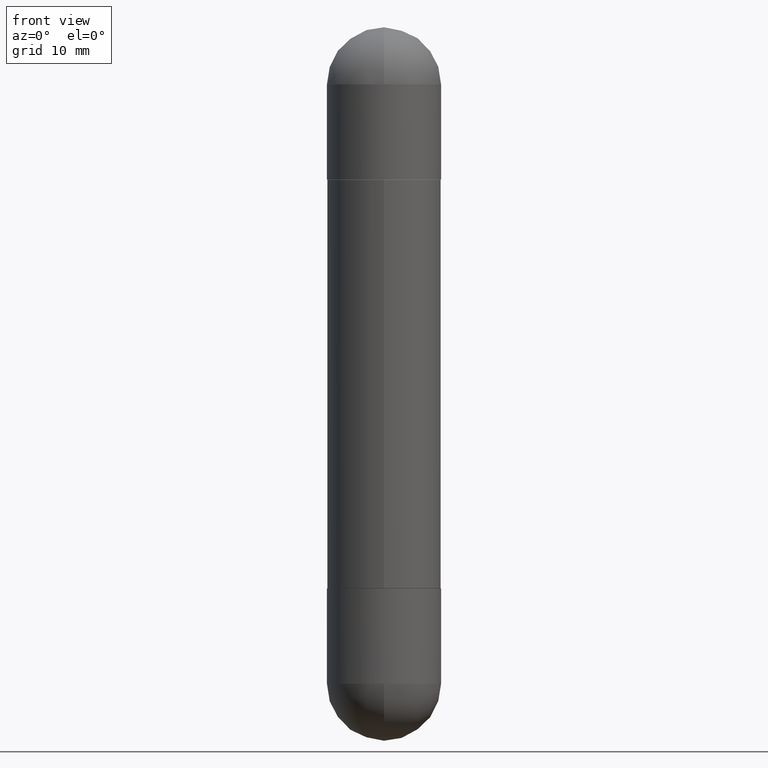
[diagram: clean part render]
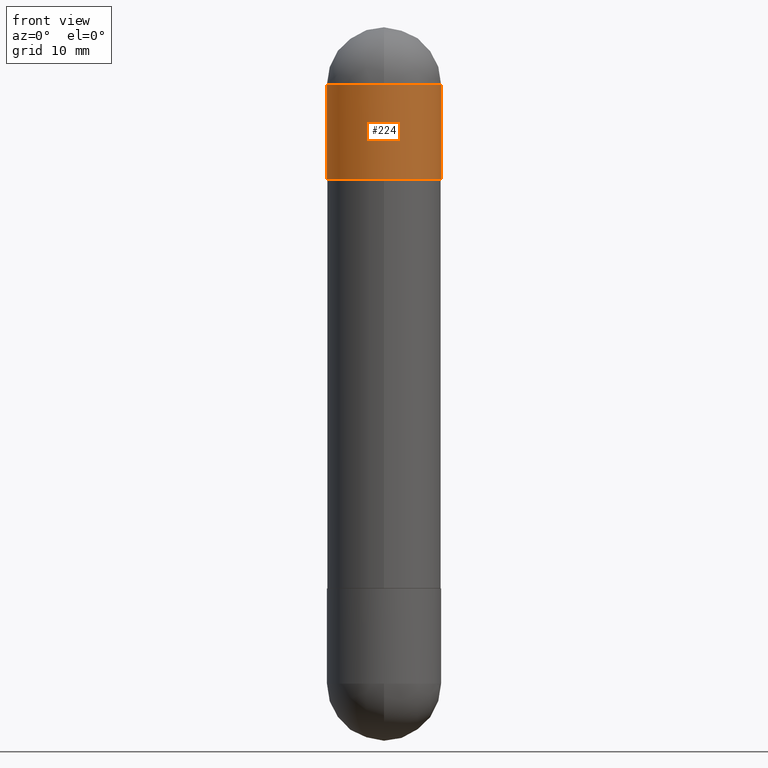
[diagram: same view with one face highlighted and labeled with its STEP entity id]
A machine part, front view. The second image highlights one B-rep face of the part: STEP entity #224.
In plain terms, the highlighted cylindrical surface (partial cylindrical patch) has radius 5.9995 mm, axis along (-0, 0, -1).
Its self-contained STEP definition (entity closure, byte-faithful):
#16 = VERTEX_POINT ( 'NONE', #47 ) ;
#17 = VERTEX_POINT ( 'NONE', #536 ) ;
#21 = EDGE_CURVE ( 'NONE', #17, #225, #312, .T. ) ;
#47 = CARTESIAN_POINT ( 'NONE',  ( -0.2361999999999999933, -7.177210476476377283E-15, -0.6299000000000000155 ) ) ;
#55 = DIRECTION ( 'NONE',  ( 2.445468806185136597E-29, -3.491481338843145583E-15, 1.000000000000000000 ) ) ;
#63 = CARTESIAN_POINT ( 'NONE',  ( 5.680579489887452821E-29, -8.110362001998742346E-15, -0.6299000000000000155 ) ) ;
#79 = VERTEX_POINT ( 'NONE', #242 ) ;
#83 = VERTEX_POINT ( 'NONE', #677 ) ;
#117 = AXIS2_PLACEMENT_3D ( 'NONE', #298, #161, #362 ) ;
#127 = CARTESIAN_POINT ( 'NONE',  ( -0.2361999999999999933, 1.620449627073635670E-15, -2.952799999999999869 ) ) ;
#128 = CIRCLE ( 'NONE', #774, 0.2361999999999999933 ) ;
#161 = DIRECTION ( 'NONE',  ( 2.445468806185136597E-29, -3.491481338843145583E-15, 1.000000000000000000 ) ) ;
#214 = ORIENTED_EDGE ( 'NONE', *, *, #813, .F. ) ;
#224 = ADVANCED_FACE ( 'NONE', ( #251 ), #257, .T. ) ;
#225 = VERTEX_POINT ( 'NONE', #752 ) ;
#230 = CARTESIAN_POINT ( 'NONE',  ( 6.643360558882540179E-29, -9.484958205101285532E-15, -0.2362000000000006039 ) ) ;
#242 = CARTESIAN_POINT ( 'NONE',  ( -0.2361999999999999933, -7.177210476476378861E-15, -0.2362000000000006039 ) ) ;
#251 = FACE_OUTER_BOUND ( 'NONE', #469, .T. ) ;
#257 = CYLINDRICAL_SURFACE ( 'NONE', #285, 0.2361999999999999933 ) ;
#269 = CARTESIAN_POINT ( 'NONE',  ( 0.2361999999999999933, -1.649375784469496131E-15, -2.952799999999999869 ) ) ;
#277 = ORIENTED_EDGE ( 'NONE', *, *, #750, .T. ) ;
#285 = AXIS2_PLACEMENT_3D ( 'NONE', #501, #311, #495 ) ;
#298 = CARTESIAN_POINT ( 'NONE',  ( 6.643360558882540179E-29, -9.484958205101285532E-15, -0.2362000000000006039 ) ) ;
#311 = DIRECTION ( 'NONE',  ( -2.445468806185136597E-29, 3.491481338843145583E-15, -1.000000000000000000 ) ) ;
#312 = CIRCLE ( 'NONE', #771, 0.2361999999999999933 ) ;
#362 = DIRECTION ( 'NONE',  ( 1.000000000000000000, -6.982962677686265133E-15, 0.000000000000000000 ) ) ;
#371 = LINE ( 'NONE', #127, #480 ) ;
#380 = DIRECTION ( 'NONE',  ( 2.445468806185136597E-29, -3.491481338843145583E-15, 1.000000000000000000 ) ) ;
#427 = DIRECTION ( 'NONE',  ( 1.000000000000000000, -6.982962677686265133E-15, 0.000000000000000000 ) ) ;
#448 = DIRECTION ( 'NONE',  ( -2.445468806185136877E-29, 3.491481338843145188E-15, -1.000000000000000000 ) ) ;
#469 = EDGE_LOOP ( 'NONE', ( #733, #643, #277, #214, #706 ) ) ;
#480 = VECTOR ( 'NONE', #448, 39.37007874015748143 ) ;
#495 = DIRECTION ( 'NONE',  ( 1.000000000000000000, -6.982962677686266711E-15, 0.000000000000000000 ) ) ;
#501 = CARTESIAN_POINT ( 'NONE',  ( 0.000000000000000000, 0.000000000000000000, -2.952799999999999869 ) ) ;
#536 = CARTESIAN_POINT ( 'NONE',  ( -1.620449627073571772E-15, -0.2362000000000098743, -0.2362000000000014366 ) ) ;
#549 = VECTOR ( 'NONE', #584, 39.37007874015748143 ) ;
#557 = EDGE_CURVE ( 'NONE', #79, #17, #760, .T. ) ;
#584 = DIRECTION ( 'NONE',  ( -2.445468806185136877E-29, 3.491481338843145188E-15, -1.000000000000000000 ) ) ;
#643 = ORIENTED_EDGE ( 'NONE', *, *, #687, .T. ) ;
#649 = LINE ( 'NONE', #269, #549 ) ;
#677 = CARTESIAN_POINT ( 'NONE',  ( 0.2361999999999999933, -9.759737786468237294E-15, -0.6299000000000000155 ) ) ;
#687 = EDGE_CURVE ( 'NONE', #79, #16, #371, .T. ) ;
#706 = ORIENTED_EDGE ( 'NONE', *, *, #21, .F. ) ;
#733 = ORIENTED_EDGE ( 'NONE', *, *, #557, .F. ) ;
#750 = EDGE_CURVE ( 'NONE', #16, #83, #128, .T. ) ;
#752 = CARTESIAN_POINT ( 'NONE',  ( 0.2361999999999999933, -1.044703588801951204E-14, -0.2362000000000006039 ) ) ;
#760 = CIRCLE ( 'NONE', #117, 0.2361999999999999933 ) ;
#764 = DIRECTION ( 'NONE',  ( 1.000000000000000000, -6.982962677686265133E-15, 0.000000000000000000 ) ) ;
#771 = AXIS2_PLACEMENT_3D ( 'NONE', #230, #55, #427 ) ;
#774 = AXIS2_PLACEMENT_3D ( 'NONE', #63, #380, #764 ) ;
#813 = EDGE_CURVE ( 'NONE', #225, #83, #649, .T. ) ;